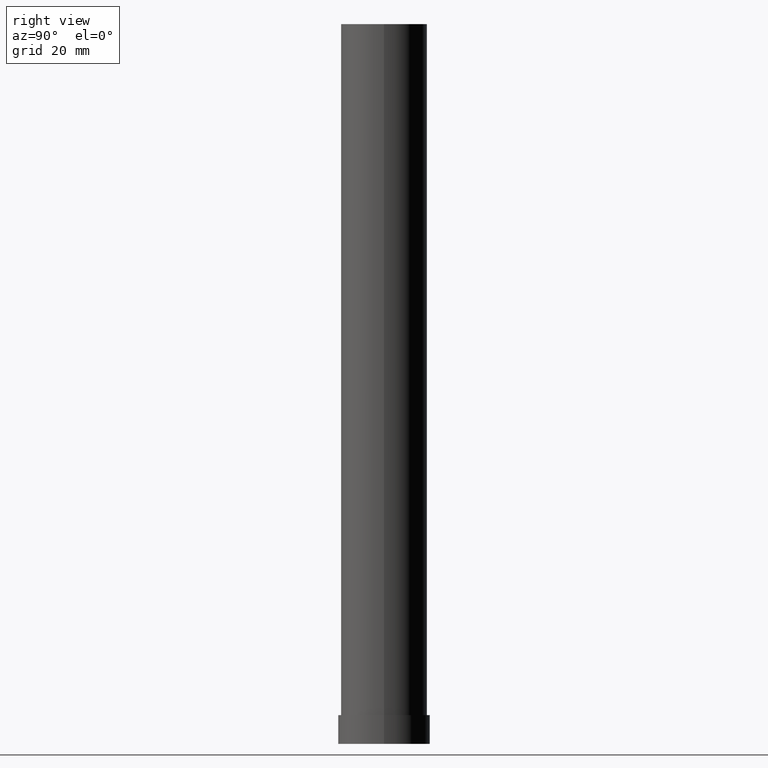
[diagram: clean part render]
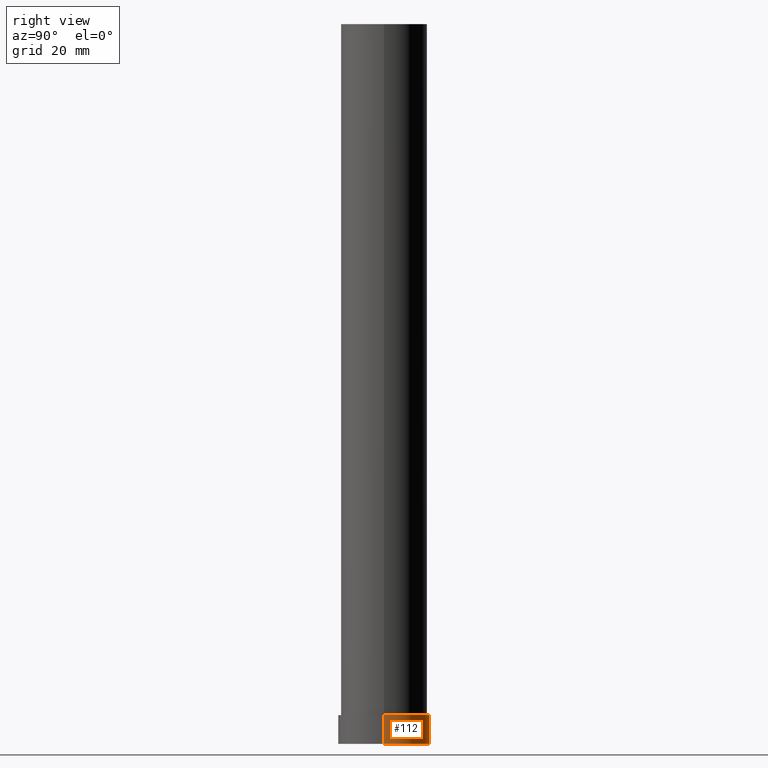
[diagram: same view with one face highlighted and labeled with its STEP entity id]
A machine part, right view. The second image highlights one B-rep face of the part: STEP entity #112.
In plain terms, the highlighted cylindrical surface (partial cylindrical patch) has radius 8 mm, axis along (-0, -0, -1).
Its self-contained STEP definition (entity closure, byte-faithful):
#3 = CARTESIAN_POINT ( 'NONE',  ( -8.000000000000000000, 0.000000000000000000, 5.000000000000000000 ) ) ;
#4 = CYLINDRICAL_SURFACE ( 'NONE', #17, 8.000000000000000000 ) ;
#8 = ORIENTED_EDGE ( 'NONE', *, *, #167, .F. ) ;
#17 = AXIS2_PLACEMENT_3D ( 'NONE', #153, #151, #44 ) ;
#39 = DIRECTION ( 'NONE',  ( -0.000000000000000000, -0.000000000000000000, -1.000000000000000000 ) ) ;
#44 = DIRECTION ( 'NONE',  ( -1.000000000000000000, 0.000000000000000000, 0.000000000000000000 ) ) ;
#45 = DIRECTION ( 'NONE',  ( 0.000000000000000000, 0.000000000000000000, 1.000000000000000000 ) ) ;
#46 = CARTESIAN_POINT ( 'NONE',  ( 8.000000000000000000, 9.797174393178825657E-16, 0.000000000000000000 ) ) ;
#47 = VECTOR ( 'NONE', #58, 1000.000000000000000 ) ;
#58 = DIRECTION ( 'NONE',  ( -0.000000000000000000, -0.000000000000000000, -1.000000000000000000 ) ) ;
#64 = DIRECTION ( 'NONE',  ( 0.000000000000000000, 0.000000000000000000, 1.000000000000000000 ) ) ;
#69 = EDGE_CURVE ( 'NONE', #76, #97, #169, .T. ) ;
#76 = VERTEX_POINT ( 'NONE', #3 ) ;
#87 = CARTESIAN_POINT ( 'NONE',  ( 0.000000000000000000, 0.000000000000000000, 0.000000000000000000 ) ) ;
#88 = EDGE_CURVE ( 'NONE', #160, #145, #125, .T. ) ;
#91 = DIRECTION ( 'NONE',  ( 1.000000000000000000, 0.000000000000000000, 0.000000000000000000 ) ) ;
#97 = VERTEX_POINT ( 'NONE', #245 ) ;
#108 = DIRECTION ( 'NONE',  ( 1.000000000000000000, 0.000000000000000000, 0.000000000000000000 ) ) ;
#112 = ADVANCED_FACE ( 'NONE', ( #185 ), #4, .T. ) ;
#116 = EDGE_CURVE ( 'NONE', #145, #97, #152, .T. ) ;
#120 = ORIENTED_EDGE ( 'NONE', *, *, #69, .F. ) ;
#125 = LINE ( 'NONE', #140, #196 ) ;
#140 = CARTESIAN_POINT ( 'NONE',  ( 8.000000000000000000, 9.797174393178825657E-16, 5.000000000000000000 ) ) ;
#145 = VERTEX_POINT ( 'NONE', #46 ) ;
#151 = DIRECTION ( 'NONE',  ( -0.000000000000000000, -0.000000000000000000, -1.000000000000000000 ) ) ;
#152 = CIRCLE ( 'NONE', #236, 8.000000000000000000 ) ;
#153 = CARTESIAN_POINT ( 'NONE',  ( 0.000000000000000000, 0.000000000000000000, 5.000000000000000000 ) ) ;
#160 = VERTEX_POINT ( 'NONE', #230 ) ;
#167 = EDGE_CURVE ( 'NONE', #160, #76, #255, .T. ) ;
#169 = LINE ( 'NONE', #241, #47 ) ;
#185 = FACE_OUTER_BOUND ( 'NONE', #220, .T. ) ;
#196 = VECTOR ( 'NONE', #39, 1000.000000000000000 ) ;
#200 = AXIS2_PLACEMENT_3D ( 'NONE', #229, #45, #91 ) ;
#220 = EDGE_LOOP ( 'NONE', ( #8, #227, #222, #120 ) ) ;
#222 = ORIENTED_EDGE ( 'NONE', *, *, #116, .T. ) ;
#227 = ORIENTED_EDGE ( 'NONE', *, *, #88, .T. ) ;
#229 = CARTESIAN_POINT ( 'NONE',  ( 0.000000000000000000, 0.000000000000000000, 5.000000000000000000 ) ) ;
#230 = CARTESIAN_POINT ( 'NONE',  ( 8.000000000000000000, 9.797174393178825657E-16, 5.000000000000000000 ) ) ;
#236 = AXIS2_PLACEMENT_3D ( 'NONE', #87, #64, #108 ) ;
#241 = CARTESIAN_POINT ( 'NONE',  ( -8.000000000000000000, 0.000000000000000000, 5.000000000000000000 ) ) ;
#245 = CARTESIAN_POINT ( 'NONE',  ( -8.000000000000000000, 0.000000000000000000, 0.000000000000000000 ) ) ;
#255 = CIRCLE ( 'NONE', #200, 8.000000000000000000 ) ;